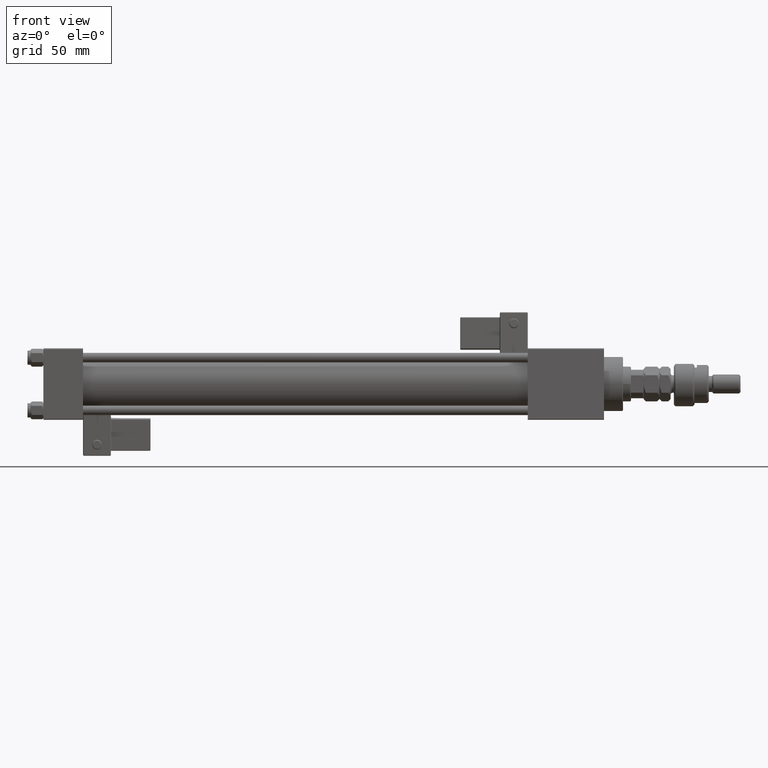
[diagram: clean part render]
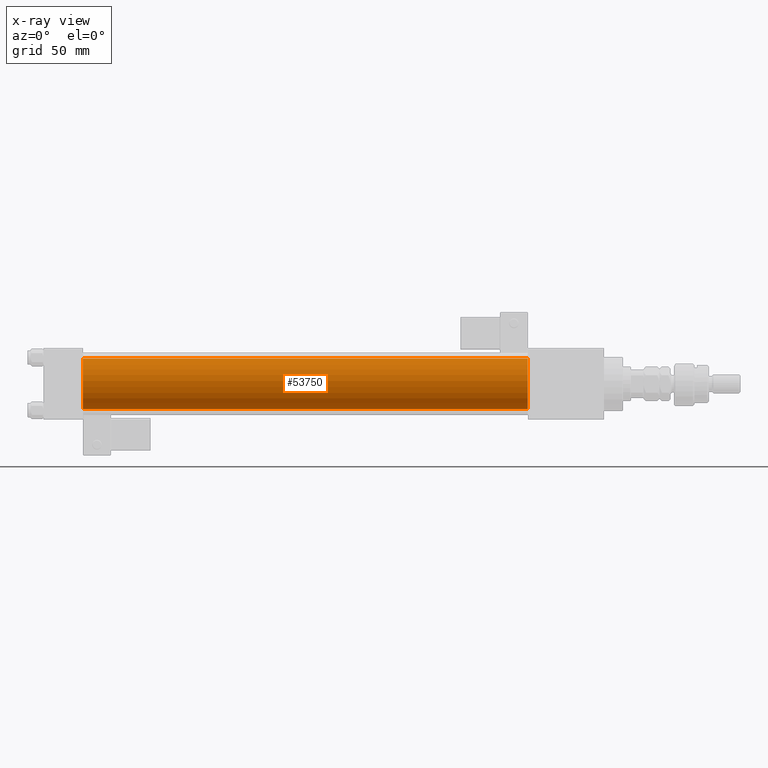
[diagram: x-ray — body ghosted, one internal face saturated and labeled with its STEP entity id]
A machine part, front view, then the same camera in x-ray: the body is ghosted and one INTERNAL B-rep face — a face not visible from any outside direction — is saturated and labeled: STEP entity #53750.
In plain terms, the highlighted cylindrical surface (edge-blend (fillet) strip) has radius 16 mm, axis along (-1, -0, -0).
Its self-contained STEP definition (entity closure, byte-faithful):
#27 = LINE ( 'NONE', #35025, #22527 ) ;
#82 = DIRECTION ( 'NONE',  ( -1.000000000000000000, -0.000000000000000000, -0.000000000000000000 ) ) ;
#961 = VERTEX_POINT ( 'NONE', #25358 ) ;
#4894 = VERTEX_POINT ( 'NONE', #41399 ) ;
#5586 = DIRECTION ( 'NONE',  ( 0.000000000000000000, 0.000000000000000000, 1.000000000000000000 ) ) ;
#6147 = FACE_OUTER_BOUND ( 'NONE', #17906, .T. ) ;
#9399 = DIRECTION ( 'NONE',  ( 1.000000000000000000, 0.000000000000000000, 0.000000000000000000 ) ) ;
#9654 = AXIS2_PLACEMENT_3D ( 'NONE', #36114, #10071, #5586 ) ;
#10071 = DIRECTION ( 'NONE',  ( -1.000000000000000000, -0.000000000000000000, -0.000000000000000000 ) ) ;
#10816 = EDGE_CURVE ( 'NONE', #961, #11177, #45747, .T. ) ;
#11177 = VERTEX_POINT ( 'NONE', #40198 ) ;
#11227 = EDGE_CURVE ( 'NONE', #11177, #31402, #50555, .T. ) ;
#11392 = DIRECTION ( 'NONE',  ( 1.000000000000000000, 0.000000000000000000, 0.000000000000000000 ) ) ;
#12918 = EDGE_CURVE ( 'NONE', #961, #4894, #27, .T. ) ;
#17906 = EDGE_LOOP ( 'NONE', ( #36268, #25898, #46050, #42651 ) ) ;
#18731 = EDGE_CURVE ( 'NONE', #4894, #31402, #41449, .T. ) ;
#22527 = VECTOR ( 'NONE', #35299, 1000.000000000000000 ) ;
#23729 = DIRECTION ( 'NONE',  ( 0.000000000000000000, 0.000000000000000000, -1.000000000000000000 ) ) ;
#24543 = CARTESIAN_POINT ( 'NONE',  ( 305.0000000000000568, -2.602085213965210642E-15, 0.000000000000000000 ) ) ;
#25358 = CARTESIAN_POINT ( 'NONE',  ( 305.0000000000000568, -2.602085213965210642E-15, 16.00000000000000000 ) ) ;
#25898 = ORIENTED_EDGE ( 'NONE', *, *, #11227, .T. ) ;
#28903 = AXIS2_PLACEMENT_3D ( 'NONE', #42753, #9399, #47799 ) ;
#31402 = VERTEX_POINT ( 'NONE', #43586 ) ;
#35025 = CARTESIAN_POINT ( 'NONE',  ( 305.0000000000000568, -2.602085213965210642E-15, 16.00000000000000000 ) ) ;
#35299 = DIRECTION ( 'NONE',  ( -1.000000000000000000, -0.000000000000000000, -0.000000000000000000 ) ) ;
#36114 = CARTESIAN_POINT ( 'NONE',  ( 305.0000000000000568, -2.602085213965210642E-15, 0.000000000000000000 ) ) ;
#36268 = ORIENTED_EDGE ( 'NONE', *, *, #10816, .T. ) ;
#38564 = AXIS2_PLACEMENT_3D ( 'NONE', #24543, #11392, #23729 ) ;
#39429 = VECTOR ( 'NONE', #82, 1000.000000000000000 ) ;
#40198 = CARTESIAN_POINT ( 'NONE',  ( 305.0000000000000568, -6.426503353294456087E-16, -16.00000000000000000 ) ) ;
#41399 = CARTESIAN_POINT ( 'NONE',  ( 25.00000000000000000, -2.602085213965210642E-15, 16.00000000000000000 ) ) ;
#41449 = CIRCLE ( 'NONE', #28903, 16.00000000000000000 ) ;
#42651 = ORIENTED_EDGE ( 'NONE', *, *, #12918, .F. ) ;
#42669 = CARTESIAN_POINT ( 'NONE',  ( 305.0000000000000568, -6.426503353294456087E-16, -16.00000000000000000 ) ) ;
#42753 = CARTESIAN_POINT ( 'NONE',  ( 25.00000000000000000, -2.602085213965210642E-15, 0.000000000000000000 ) ) ;
#43586 = CARTESIAN_POINT ( 'NONE',  ( 25.00000000000000000, -6.426503353294456087E-16, -16.00000000000000000 ) ) ;
#45747 = CIRCLE ( 'NONE', #38564, 16.00000000000000000 ) ;
#46050 = ORIENTED_EDGE ( 'NONE', *, *, #18731, .F. ) ;
#47799 = DIRECTION ( 'NONE',  ( 0.000000000000000000, 0.000000000000000000, -1.000000000000000000 ) ) ;
#50555 = LINE ( 'NONE', #42669, #39429 ) ;
#53237 = CYLINDRICAL_SURFACE ( 'NONE', #9654, 16.00000000000000000 ) ;
#53750 = ADVANCED_FACE ( 'NONE', ( #6147 ), #53237, .F. ) ;